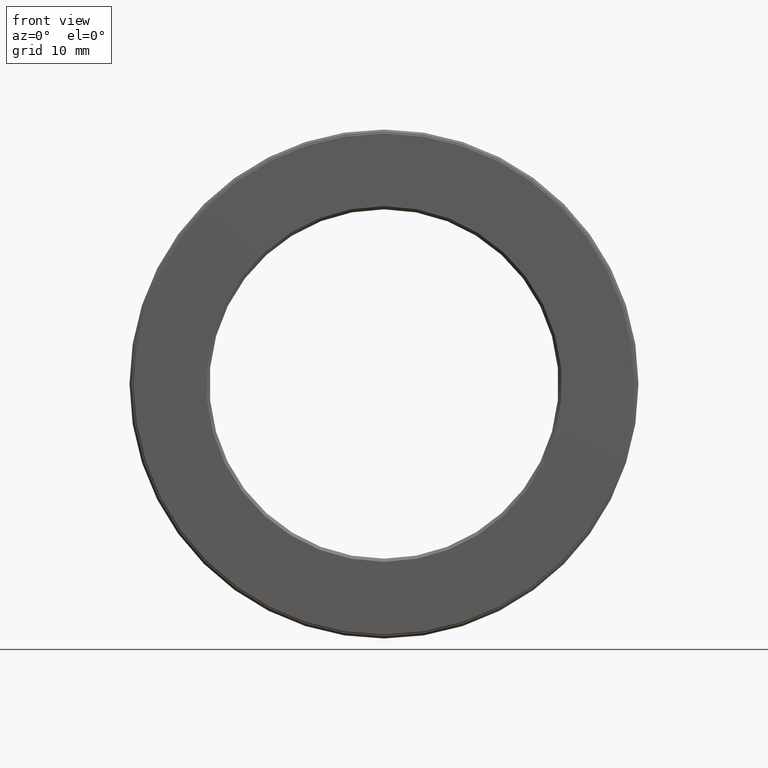
[diagram: clean part render]
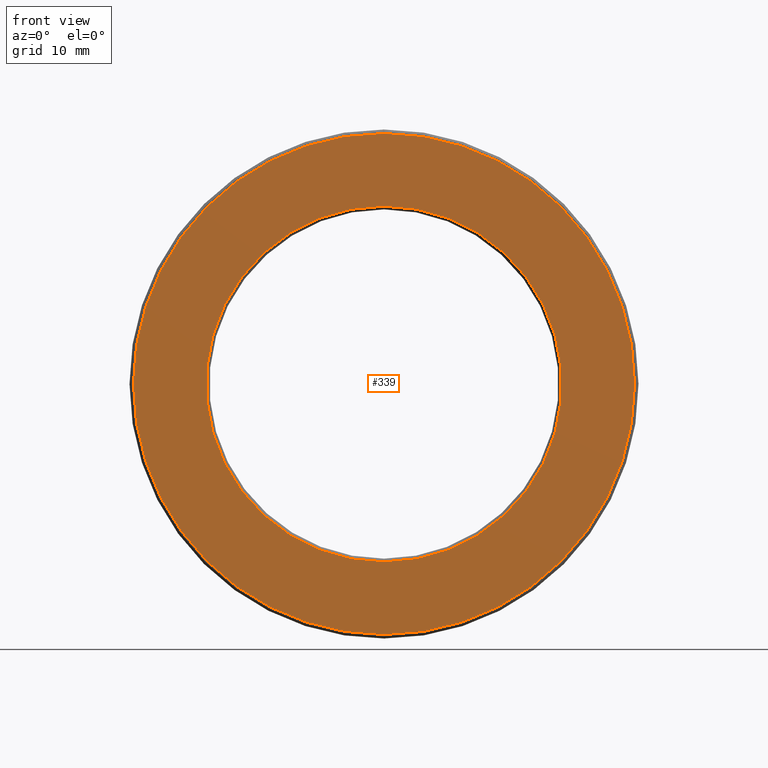
[diagram: same view with one face highlighted and labeled with its STEP entity id]
A machine part, front view. The second image highlights one B-rep face of the part: STEP entity #339.
In plain terms, the highlighted planar face has unit normal (-0, 1, 0).
Its self-contained STEP definition (entity closure, byte-faithful):
#12 = AXIS2_PLACEMENT_3D ( 'NONE', #358, #177, #501 ) ;
#13 = DIRECTION ( 'NONE',  ( -0.0000000000000000000, 1.000000000000000000, 0.0000000000000000000 ) ) ;
#61 = DIRECTION ( 'NONE',  ( -0.0000000000000000000, 1.000000000000000000, -0.0000000000000000000 ) ) ;
#74 = CARTESIAN_POINT ( 'NONE',  ( 0.0000000000000000000, -6.722907171908147400E-017, 1.568749999999999400 ) ) ;
#84 = FACE_OUTER_BOUND ( 'NONE', #470, .T. ) ;
#106 = CARTESIAN_POINT ( 'NONE',  ( -2.431527317371448200E-032, -3.361453585954073700E-017, 0.0000000000000000000 ) ) ;
#108 = EDGE_LOOP ( 'NONE', ( #186 ) ) ;
#117 = DIRECTION ( 'NONE',  ( 0.0000000000000000000, 0.0000000000000000000, 1.000000000000000000 ) ) ;
#135 = AXIS2_PLACEMENT_3D ( 'NONE', #106, #13, #300 ) ;
#177 = DIRECTION ( 'NONE',  ( -0.0000000000000000000, 1.000000000000000000, -0.0000000000000000000 ) ) ;
#182 = CIRCLE ( 'NONE', #12, 1.113750000000000500 ) ;
#186 = ORIENTED_EDGE ( 'NONE', *, *, #524, .T. ) ;
#207 = PLANE ( 'NONE',  #135 ) ;
#284 = CARTESIAN_POINT ( 'NONE',  ( 0.0000000000000000000, 0.0000000000000000000, 1.113750000000000500 ) ) ;
#300 = DIRECTION ( 'NONE',  ( 0.0000000000000000000, 0.0000000000000000000, 1.000000000000000000 ) ) ;
#323 = AXIS2_PLACEMENT_3D ( 'NONE', #352, #61, #117 ) ;
#339 = ADVANCED_FACE ( 'NONE', ( #84, #418 ), #207, .F. ) ;
#352 = CARTESIAN_POINT ( 'NONE',  ( 0.0000000000000000000, -6.722907171908147400E-017, 0.0000000000000000000 ) ) ;
#358 = CARTESIAN_POINT ( 'NONE',  ( 0.0000000000000000000, 0.0000000000000000000, 0.0000000000000000000 ) ) ;
#418 = FACE_BOUND ( 'NONE', #108, .T. ) ;
#423 = EDGE_CURVE ( 'NONE', #505, #505, #594, .T. ) ;
#459 = VERTEX_POINT ( 'NONE', #284 ) ;
#470 = EDGE_LOOP ( 'NONE', ( #492 ) ) ;
#492 = ORIENTED_EDGE ( 'NONE', *, *, #423, .F. ) ;
#501 = DIRECTION ( 'NONE',  ( 0.0000000000000000000, 0.0000000000000000000, 1.000000000000000000 ) ) ;
#505 = VERTEX_POINT ( 'NONE', #74 ) ;
#524 = EDGE_CURVE ( 'NONE', #459, #459, #182, .T. ) ;
#594 = CIRCLE ( 'NONE', #323, 1.568749999999999400 ) ;